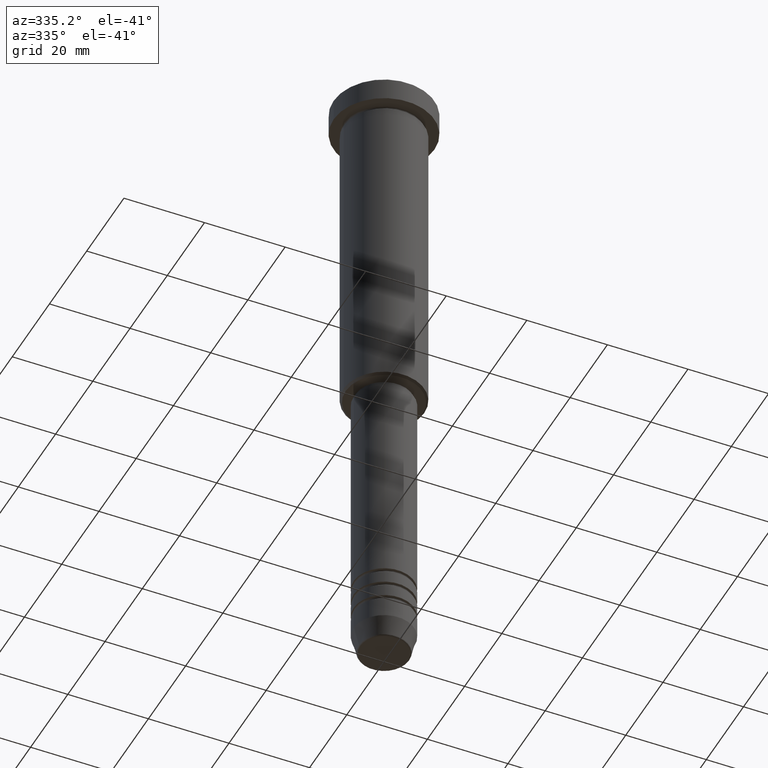
[diagram: clean part render]
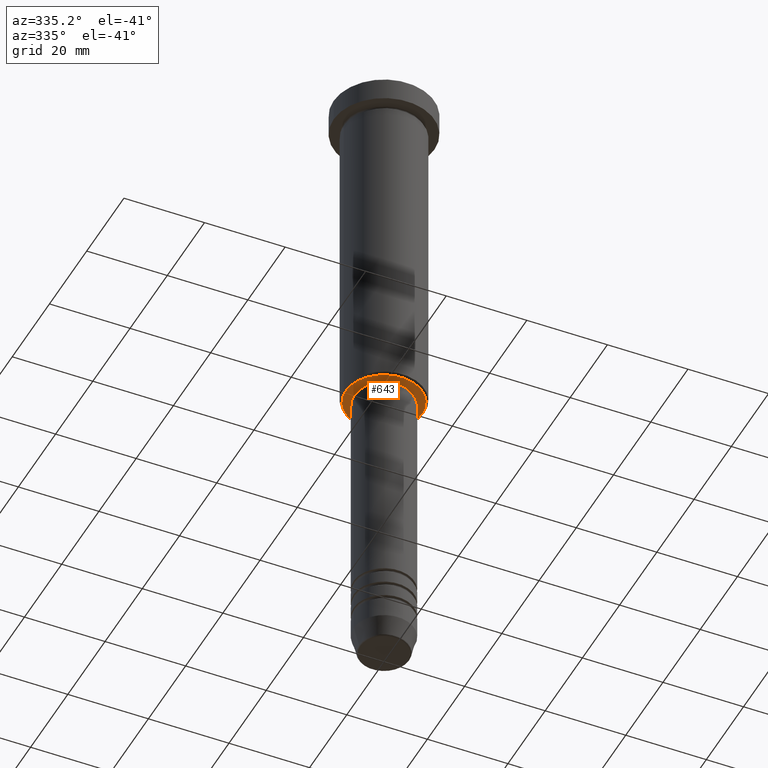
[diagram: same view with one face highlighted and labeled with its STEP entity id]
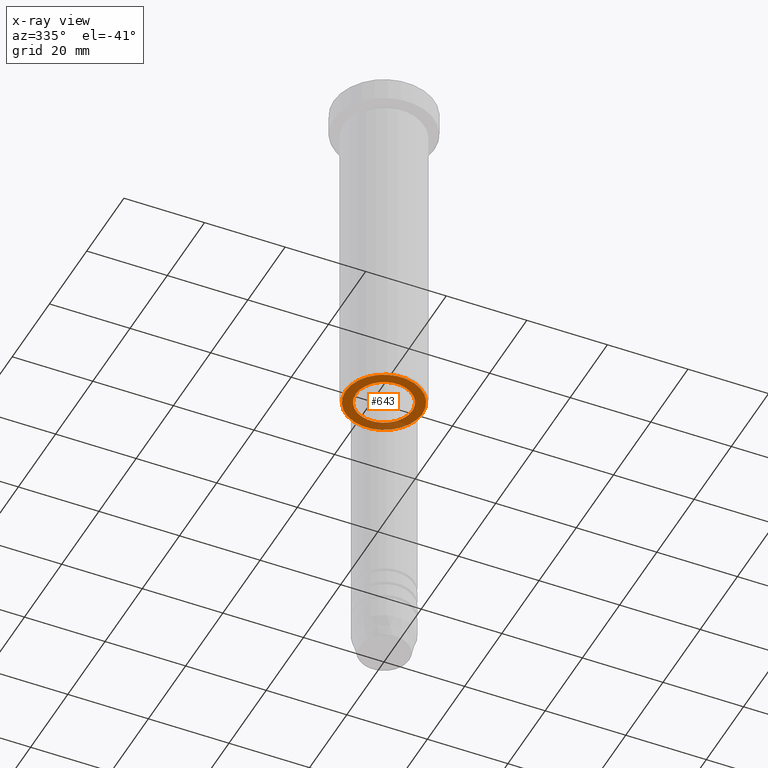
[diagram: x-ray of the same camera — body ghosted, the highlighted face saturated]
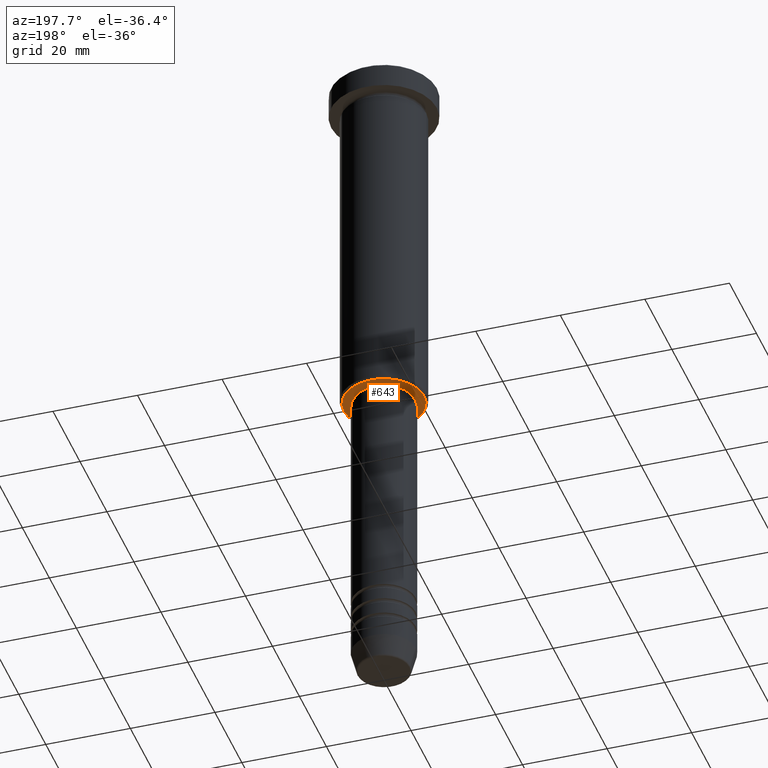
[diagram: same view with one face highlighted and labeled with its STEP entity id]
A machine part, auxiliary view. The second image highlights one B-rep face of the part: STEP entity #643.
The next image is the same camera in x-ray: the body ghosted, the highlighted face saturated — about 16% of this face is hidden behind the body in this view.
A second angle (auxiliary view) of the same face is appended — the face is thin or edge-on in the first view.
In plain terms, the highlighted planar face has unit normal (0, 0, -1).
Its self-contained STEP definition (entity closure, byte-faithful):
#3 = CARTESIAN_POINT ( 'NONE',  ( 0.000000000000000000, 0.000000000000000000, -85.99999999999997158 ) ) ;
#6 = EDGE_CURVE ( 'NONE', #171, #572, #221, .T. ) ;
#88 = DIRECTION ( 'NONE',  ( -1.000000000000000000, 0.000000000000000000, 0.000000000000000000 ) ) ;
#111 = PLANE ( 'NONE',  #486 ) ;
#156 = VERTEX_POINT ( 'NONE', #960 ) ;
#171 = VERTEX_POINT ( 'NONE', #908 ) ;
#191 = DIRECTION ( 'NONE',  ( -0.000000000000000000, -0.000000000000000000, 1.000000000000000000 ) ) ;
#198 = EDGE_LOOP ( 'NONE', ( #461, #712 ) ) ;
#221 = CIRCLE ( 'NONE', #973, 9.499999999999980460 ) ;
#272 = CIRCLE ( 'NONE', #1090, 9.499999999999980460 ) ;
#273 = EDGE_CURVE ( 'NONE', #572, #171, #272, .T. ) ;
#285 = FACE_OUTER_BOUND ( 'NONE', #762, .T. ) ;
#307 = CARTESIAN_POINT ( 'NONE',  ( 0.000000000000000000, 0.000000000000000000, -85.99999999999997158 ) ) ;
#340 = DIRECTION ( 'NONE',  ( 0.000000000000000000, 0.000000000000000000, -1.000000000000000000 ) ) ;
#366 = EDGE_CURVE ( 'NONE', #1052, #156, #974, .T. ) ;
#371 = DIRECTION ( 'NONE',  ( 1.000000000000000000, 0.000000000000000000, 0.000000000000000000 ) ) ;
#393 = DIRECTION ( 'NONE',  ( 0.000000000000000000, 0.000000000000000000, -1.000000000000000000 ) ) ;
#396 = DIRECTION ( 'NONE',  ( -0.000000000000000000, -0.000000000000000000, 1.000000000000000000 ) ) ;
#461 = ORIENTED_EDGE ( 'NONE', *, *, #463, .T. ) ;
#463 = EDGE_CURVE ( 'NONE', #156, #1052, #598, .T. ) ;
#486 = AXIS2_PLACEMENT_3D ( 'NONE', #913, #393, #1117 ) ;
#572 = VERTEX_POINT ( 'NONE', #761 ) ;
#575 = DIRECTION ( 'NONE',  ( 1.000000000000000000, 0.000000000000000000, 0.000000000000000000 ) ) ;
#581 = AXIS2_PLACEMENT_3D ( 'NONE', #741, #396, #575 ) ;
#598 = CIRCLE ( 'NONE', #581, 6.999999999999999112 ) ;
#603 = CARTESIAN_POINT ( 'NONE',  ( -6.999999999999999112, 8.572527594031472204E-16, -85.99999999999997158 ) ) ;
#643 = ADVANCED_FACE ( 'NONE', ( #285, #1005 ), #111, .T. ) ;
#655 = ORIENTED_EDGE ( 'NONE', *, *, #273, .T. ) ;
#712 = ORIENTED_EDGE ( 'NONE', *, *, #366, .T. ) ;
#726 = AXIS2_PLACEMENT_3D ( 'NONE', #3, #191, #371 ) ;
#741 = CARTESIAN_POINT ( 'NONE',  ( 0.000000000000000000, 0.000000000000000000, -85.99999999999997158 ) ) ;
#761 = CARTESIAN_POINT ( 'NONE',  ( 9.499999999999980460, 0.000000000000000000, -85.99999999999997158 ) ) ;
#762 = EDGE_LOOP ( 'NONE', ( #655, #1089 ) ) ;
#808 = CARTESIAN_POINT ( 'NONE',  ( 0.000000000000000000, 0.000000000000000000, -85.99999999999997158 ) ) ;
#822 = DIRECTION ( 'NONE',  ( 0.000000000000000000, 0.000000000000000000, -1.000000000000000000 ) ) ;
#908 = CARTESIAN_POINT ( 'NONE',  ( -9.499999999999980460, 1.194030629168668286E-15, -85.99999999999997158 ) ) ;
#913 = CARTESIAN_POINT ( 'NONE',  ( 0.000000000000000000, 10.00000000000000000, -85.99999999999997158 ) ) ;
#928 = DIRECTION ( 'NONE',  ( -1.000000000000000000, 0.000000000000000000, 0.000000000000000000 ) ) ;
#960 = CARTESIAN_POINT ( 'NONE',  ( 6.999999999999999112, 0.000000000000000000, -85.99999999999997158 ) ) ;
#973 = AXIS2_PLACEMENT_3D ( 'NONE', #808, #340, #88 ) ;
#974 = CIRCLE ( 'NONE', #726, 6.999999999999999112 ) ;
#1005 = FACE_BOUND ( 'NONE', #198, .T. ) ;
#1052 = VERTEX_POINT ( 'NONE', #603 ) ;
#1089 = ORIENTED_EDGE ( 'NONE', *, *, #6, .T. ) ;
#1090 = AXIS2_PLACEMENT_3D ( 'NONE', #307, #822, #928 ) ;
#1117 = DIRECTION ( 'NONE',  ( -1.000000000000000000, 0.000000000000000000, -0.000000000000000000 ) ) ;